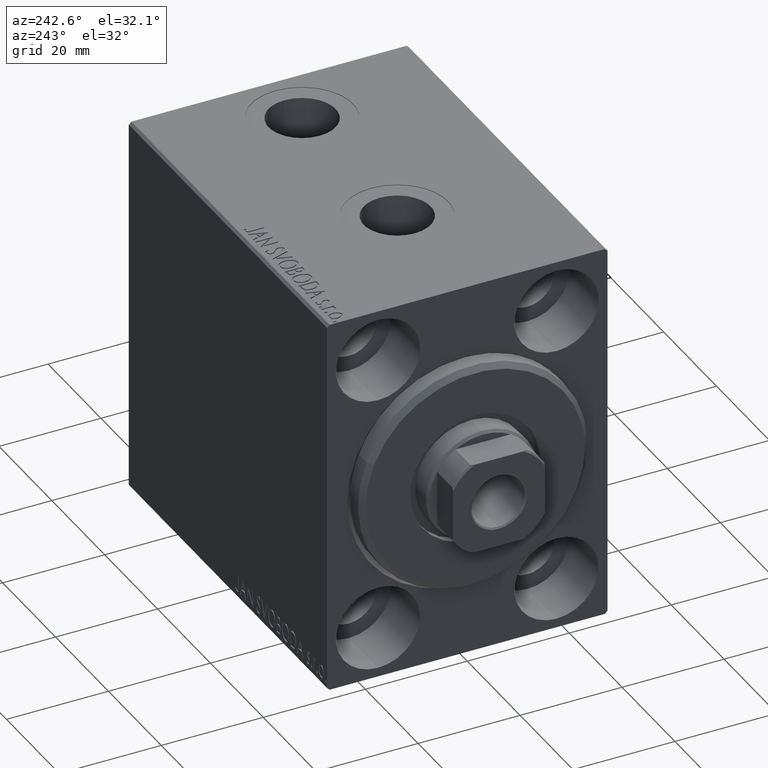
[diagram: clean part render]
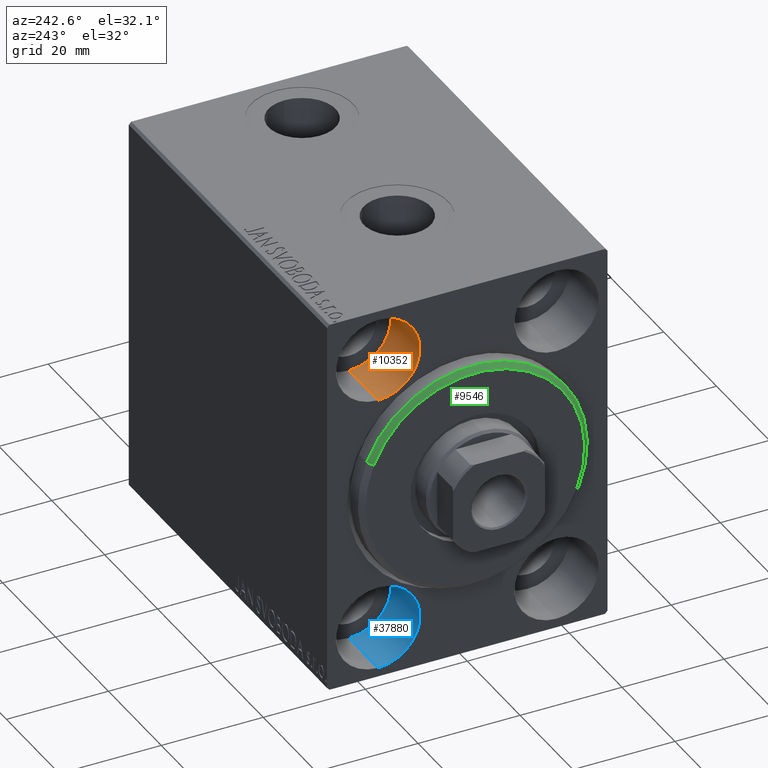
[diagram: same view with three faces highlighted in distinct colors, each labeled with its STEP entity id]
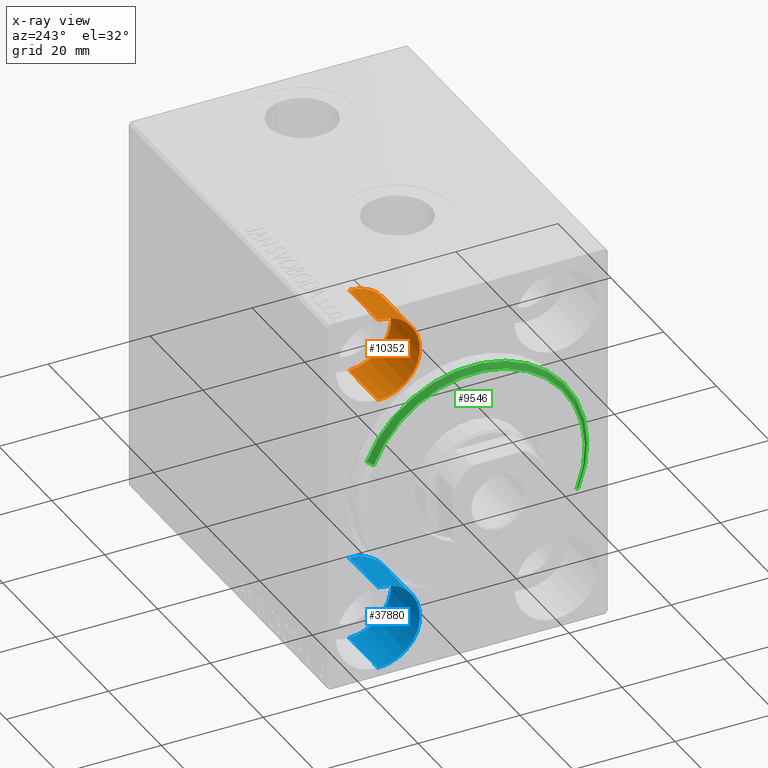
[diagram: x-ray of the same camera — body ghosted, the three highlighted faces saturated]
A machine part, auxiliary view with three faces highlighted in distinct colors.
The next image is the same camera in x-ray (body ghosted, the three faces saturated) — at least one of them is partly hidden behind the body in this view.
Their STEP definitions:

[orange] entity #10352 — the highlighted cylindrical surface (partial cylindrical patch) has radius 8.25 mm, axis along (-1, -0, -0).
#858 = CARTESIAN_POINT ( 'NONE',  ( 11.00000000000000000, 17.50000000000000355, 27.49999999999999645 ) ) ;
#982 = VERTEX_POINT ( 'NONE', #5246 ) ;
#2225 = DIRECTION ( 'NONE',  ( 0.000000000000000000, 0.000000000000000000, 1.000000000000000000 ) ) ;
#2897 = EDGE_CURVE ( 'NONE', #42697, #28264, #33996, .T. ) ;
#3289 = CARTESIAN_POINT ( 'NONE',  ( 11.00000000000000000, 17.50000000000000355, 35.74999999999999289 ) ) ;
#3518 = DIRECTION ( 'NONE',  ( 0.000000000000000000, 0.000000000000000000, 1.000000000000000000 ) ) ;
#4126 = ORIENTED_EDGE ( 'NONE', *, *, #19839, .T. ) ;
#5246 = CARTESIAN_POINT ( 'NONE',  ( 11.00000000000000000, 17.50000000000000355, 19.25000000000000000 ) ) ;
#7085 = CYLINDRICAL_SURFACE ( 'NONE', #20134, 8.249999999999992895 ) ;
#7530 = CARTESIAN_POINT ( 'NONE',  ( 11.00000000000000000, 17.50000000000000355, 27.49999999999999645 ) ) ;
#9112 = DIRECTION ( 'NONE',  ( -1.000000000000000000, 0.000000000000000000, 0.000000000000000000 ) ) ;
#10352 = ADVANCED_FACE ( 'NONE', ( #34240 ), #7085, .F. ) ;
#12039 = VECTOR ( 'NONE', #38175, 1000.000000000000000 ) ;
#12262 = ORIENTED_EDGE ( 'NONE', *, *, #25015, .F. ) ;
#16827 = DIRECTION ( 'NONE',  ( -1.000000000000000000, -0.000000000000000000, -0.000000000000000000 ) ) ;
#17781 = VECTOR ( 'NONE', #16827, 1000.000000000000000 ) ;
#18690 = AXIS2_PLACEMENT_3D ( 'NONE', #40241, #9112, #2225 ) ;
#18767 = CARTESIAN_POINT ( 'NONE',  ( 0.000000000000000000, 17.50000000000000355, 19.25000000000000000 ) ) ;
#19839 = EDGE_CURVE ( 'NONE', #982, #29268, #41509, .T. ) ;
#20134 = AXIS2_PLACEMENT_3D ( 'NONE', #7530, #37781, #3518 ) ;
#20865 = DIRECTION ( 'NONE',  ( 0.000000000000000000, 0.000000000000000000, 1.000000000000000000 ) ) ;
#21687 = EDGE_LOOP ( 'NONE', ( #12262, #4126, #41586, #36390 ) ) ;
#25015 = EDGE_CURVE ( 'NONE', #982, #42697, #35537, .T. ) ;
#25065 = CARTESIAN_POINT ( 'NONE',  ( 0.000000000000000000, 17.50000000000000355, 35.74999999999999289 ) ) ;
#26502 = CIRCLE ( 'NONE', #18690, 8.249999999999992895 ) ;
#28264 = VERTEX_POINT ( 'NONE', #25065 ) ;
#29268 = VERTEX_POINT ( 'NONE', #18767 ) ;
#33996 = LINE ( 'NONE', #3289, #17781 ) ;
#34240 = FACE_OUTER_BOUND ( 'NONE', #21687, .T. ) ;
#34545 = EDGE_CURVE ( 'NONE', #29268, #28264, #26502, .T. ) ;
#34909 = DIRECTION ( 'NONE',  ( -1.000000000000000000, 0.000000000000000000, 0.000000000000000000 ) ) ;
#35537 = CIRCLE ( 'NONE', #36925, 8.249999999999992895 ) ;
#36390 = ORIENTED_EDGE ( 'NONE', *, *, #2897, .F. ) ;
#36925 = AXIS2_PLACEMENT_3D ( 'NONE', #858, #34909, #20865 ) ;
#37781 = DIRECTION ( 'NONE',  ( -1.000000000000000000, -0.000000000000000000, -0.000000000000000000 ) ) ;
#38175 = DIRECTION ( 'NONE',  ( -1.000000000000000000, -0.000000000000000000, -0.000000000000000000 ) ) ;
#38852 = CARTESIAN_POINT ( 'NONE',  ( 11.00000000000000000, 17.50000000000000355, 19.25000000000000000 ) ) ;
#39559 = CARTESIAN_POINT ( 'NONE',  ( 11.00000000000000000, 17.50000000000000355, 35.74999999999999289 ) ) ;
#40241 = CARTESIAN_POINT ( 'NONE',  ( 0.000000000000000000, 17.50000000000000355, 27.49999999999999645 ) ) ;
#41509 = LINE ( 'NONE', #38852, #12039 ) ;
#41586 = ORIENTED_EDGE ( 'NONE', *, *, #34545, .T. ) ;
#42697 = VERTEX_POINT ( 'NONE', #39559 ) ;

[blue] entity #37880 — the highlighted cylindrical surface (partial cylindrical patch) has radius 8.25 mm, axis along (-1, -0, -0).
#248 = AXIS2_PLACEMENT_3D ( 'NONE', #37705, #7231, #7453 ) ;
#831 = VERTEX_POINT ( 'NONE', #3462 ) ;
#1731 = EDGE_CURVE ( 'NONE', #831, #35217, #43663, .T. ) ;
#2227 = CARTESIAN_POINT ( 'NONE',  ( 11.00000000000000000, 17.49999999999999645, -35.75000000000000711 ) ) ;
#3088 = LINE ( 'NONE', #2227, #5247 ) ;
#3462 = CARTESIAN_POINT ( 'NONE',  ( 11.00000000000000000, 17.49999999999999645, -19.25000000000000355 ) ) ;
#5247 = VECTOR ( 'NONE', #36696, 1000.000000000000000 ) ;
#5782 = CARTESIAN_POINT ( 'NONE',  ( 0.000000000000000000, 17.49999999999999645, -35.75000000000000711 ) ) ;
#6779 = VERTEX_POINT ( 'NONE', #26468 ) ;
#7231 = DIRECTION ( 'NONE',  ( -1.000000000000000000, 0.000000000000000000, 0.000000000000000000 ) ) ;
#7453 = DIRECTION ( 'NONE',  ( 0.000000000000000000, 0.000000000000000000, 1.000000000000000000 ) ) ;
#10283 = EDGE_CURVE ( 'NONE', #6779, #34557, #3088, .T. ) ;
#10684 = VECTOR ( 'NONE', #23186, 1000.000000000000000 ) ;
#10982 = DIRECTION ( 'NONE',  ( -1.000000000000000000, 0.000000000000000000, 0.000000000000000000 ) ) ;
#12483 = DIRECTION ( 'NONE',  ( -1.000000000000000000, -0.000000000000000000, -0.000000000000000000 ) ) ;
#12909 = FACE_OUTER_BOUND ( 'NONE', #30079, .T. ) ;
#17128 = CARTESIAN_POINT ( 'NONE',  ( 0.000000000000000000, 17.49999999999999645, -19.25000000000000355 ) ) ;
#17416 = DIRECTION ( 'NONE',  ( 0.000000000000000000, 0.000000000000000000, 1.000000000000000000 ) ) ;
#19420 = CIRCLE ( 'NONE', #248, 8.250000000000000000 ) ;
#19592 = CYLINDRICAL_SURFACE ( 'NONE', #24433, 8.250000000000000000 ) ;
#22924 = ORIENTED_EDGE ( 'NONE', *, *, #26481, .T. ) ;
#23186 = DIRECTION ( 'NONE',  ( -1.000000000000000000, -0.000000000000000000, -0.000000000000000000 ) ) ;
#23915 = ORIENTED_EDGE ( 'NONE', *, *, #10283, .T. ) ;
#23946 = ORIENTED_EDGE ( 'NONE', *, *, #1731, .F. ) ;
#24433 = AXIS2_PLACEMENT_3D ( 'NONE', #30259, #12483, #26054 ) ;
#26054 = DIRECTION ( 'NONE',  ( 0.000000000000000000, 0.000000000000000000, 1.000000000000000000 ) ) ;
#26281 = AXIS2_PLACEMENT_3D ( 'NONE', #27874, #10982, #17416 ) ;
#26468 = CARTESIAN_POINT ( 'NONE',  ( 11.00000000000000000, 17.49999999999999645, -35.75000000000000711 ) ) ;
#26481 = EDGE_CURVE ( 'NONE', #34557, #35217, #39107, .T. ) ;
#27874 = CARTESIAN_POINT ( 'NONE',  ( 0.000000000000000000, 17.49999999999999645, -27.50000000000000355 ) ) ;
#30079 = EDGE_LOOP ( 'NONE', ( #39631, #23915, #22924, #23946 ) ) ;
#30259 = CARTESIAN_POINT ( 'NONE',  ( 11.00000000000000000, 17.49999999999999645, -27.50000000000000355 ) ) ;
#34557 = VERTEX_POINT ( 'NONE', #5782 ) ;
#35217 = VERTEX_POINT ( 'NONE', #17128 ) ;
#36660 = EDGE_CURVE ( 'NONE', #6779, #831, #19420, .T. ) ;
#36696 = DIRECTION ( 'NONE',  ( -1.000000000000000000, -0.000000000000000000, -0.000000000000000000 ) ) ;
#37705 = CARTESIAN_POINT ( 'NONE',  ( 11.00000000000000000, 17.49999999999999645, -27.50000000000000355 ) ) ;
#37880 = ADVANCED_FACE ( 'NONE', ( #12909 ), #19592, .F. ) ;
#39107 = CIRCLE ( 'NONE', #26281, 8.250000000000000000 ) ;
#39631 = ORIENTED_EDGE ( 'NONE', *, *, #36660, .F. ) ;
#43440 = CARTESIAN_POINT ( 'NONE',  ( 11.00000000000000000, 17.49999999999999645, -19.25000000000000355 ) ) ;
#43663 = LINE ( 'NONE', #43440, #10684 ) ;

[green] entity #9546 — the highlighted conical surface has half-angle 45 deg.
#1902 = DIRECTION ( 'NONE',  ( 0.000000000000000000, 0.000000000000000000, 1.000000000000000000 ) ) ;
#3324 = CARTESIAN_POINT ( 'NONE',  ( 1.999999999999999112, 0.000000000000000000, 0.000000000000000000 ) ) ;
#6882 = DIRECTION ( 'NONE',  ( 0.000000000000000000, 0.000000000000000000, -1.000000000000000000 ) ) ;
#7402 = VERTEX_POINT ( 'NONE', #31424 ) ;
#8524 = VECTOR ( 'NONE', #26733, 1000.000000000000000 ) ;
#9211 = VECTOR ( 'NONE', #20695, 1000.000000000000000 ) ;
#9546 = ADVANCED_FACE ( 'NONE', ( #42607 ), #20798, .T. ) ;
#9589 = VERTEX_POINT ( 'NONE', #32595 ) ;
#10599 = AXIS2_PLACEMENT_3D ( 'NONE', #22243, #42503, #23497 ) ;
#10698 = CARTESIAN_POINT ( 'NONE',  ( 3.000000000000000000, 0.000000000000000000, 21.50000000000000355 ) ) ;
#12513 = LINE ( 'NONE', #19623, #8524 ) ;
#12548 = DIRECTION ( 'NONE',  ( -1.000000000000000000, 0.000000000000000000, 0.000000000000000000 ) ) ;
#13067 = VERTEX_POINT ( 'NONE', #25982 ) ;
#13692 = AXIS2_PLACEMENT_3D ( 'NONE', #28811, #12548, #1902 ) ;
#16864 = DIRECTION ( 'NONE',  ( -1.000000000000000000, 0.000000000000000000, 0.000000000000000000 ) ) ;
#17790 = CIRCLE ( 'NONE', #21356, 22.50000000000000355 ) ;
#19623 = CARTESIAN_POINT ( 'NONE',  ( 3.000000000000000000, 2.632990618166810024E-15, -21.50000000000000355 ) ) ;
#20695 = DIRECTION ( 'NONE',  ( -0.7071067811865487940, 0.000000000000000000, 0.7071067811865463515 ) ) ;
#20798 = CONICAL_SURFACE ( 'NONE', #13692, 21.50000000000000355, 0.7853981633974466137 ) ;
#21356 = AXIS2_PLACEMENT_3D ( 'NONE', #3324, #16864, #6882 ) ;
#22243 = CARTESIAN_POINT ( 'NONE',  ( 3.000000000000000000, 0.000000000000000000, 0.000000000000000000 ) ) ;
#23497 = DIRECTION ( 'NONE',  ( 0.000000000000000000, 0.000000000000000000, -1.000000000000000000 ) ) ;
#24002 = EDGE_CURVE ( 'NONE', #40921, #9589, #34082, .T. ) ;
#24625 = EDGE_CURVE ( 'NONE', #40921, #13067, #41172, .T. ) ;
#25364 = EDGE_CURVE ( 'NONE', #9589, #7402, #12513, .T. ) ;
#25982 = CARTESIAN_POINT ( 'NONE',  ( 1.999999999999999112, 0.000000000000000000, 22.50000000000000355 ) ) ;
#26733 = DIRECTION ( 'NONE',  ( -0.7071067811865487940, 8.659560562354919300E-17, -0.7071067811865463515 ) ) ;
#27802 = EDGE_CURVE ( 'NONE', #7402, #13067, #17790, .T. ) ;
#28811 = CARTESIAN_POINT ( 'NONE',  ( 3.000000000000000000, 0.000000000000000000, 0.000000000000000000 ) ) ;
#31424 = CARTESIAN_POINT ( 'NONE',  ( 1.999999999999999112, 2.755455298081545172E-15, -22.50000000000000355 ) ) ;
#32595 = CARTESIAN_POINT ( 'NONE',  ( 3.000000000000000000, 2.694222958124177598E-15, -21.50000000000000355 ) ) ;
#34082 = CIRCLE ( 'NONE', #10599, 21.50000000000000355 ) ;
#37236 = ORIENTED_EDGE ( 'NONE', *, *, #24625, .T. ) ;
#38808 = ORIENTED_EDGE ( 'NONE', *, *, #24002, .F. ) ;
#40320 = ORIENTED_EDGE ( 'NONE', *, *, #25364, .F. ) ;
#40921 = VERTEX_POINT ( 'NONE', #41547 ) ;
#41035 = ORIENTED_EDGE ( 'NONE', *, *, #27802, .F. ) ;
#41172 = LINE ( 'NONE', #10698, #9211 ) ;
#41547 = CARTESIAN_POINT ( 'NONE',  ( 3.000000000000000000, 0.000000000000000000, 21.50000000000000355 ) ) ;
#42503 = DIRECTION ( 'NONE',  ( 1.000000000000000000, -0.000000000000000000, 0.000000000000000000 ) ) ;
#42607 = FACE_OUTER_BOUND ( 'NONE', #43341, .T. ) ;
#43341 = EDGE_LOOP ( 'NONE', ( #40320, #38808, #37236, #41035 ) ) ;